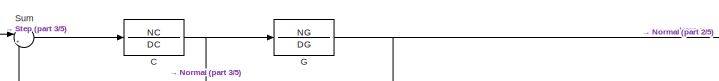
[diagram: root canvas - part 1/5, top center region]
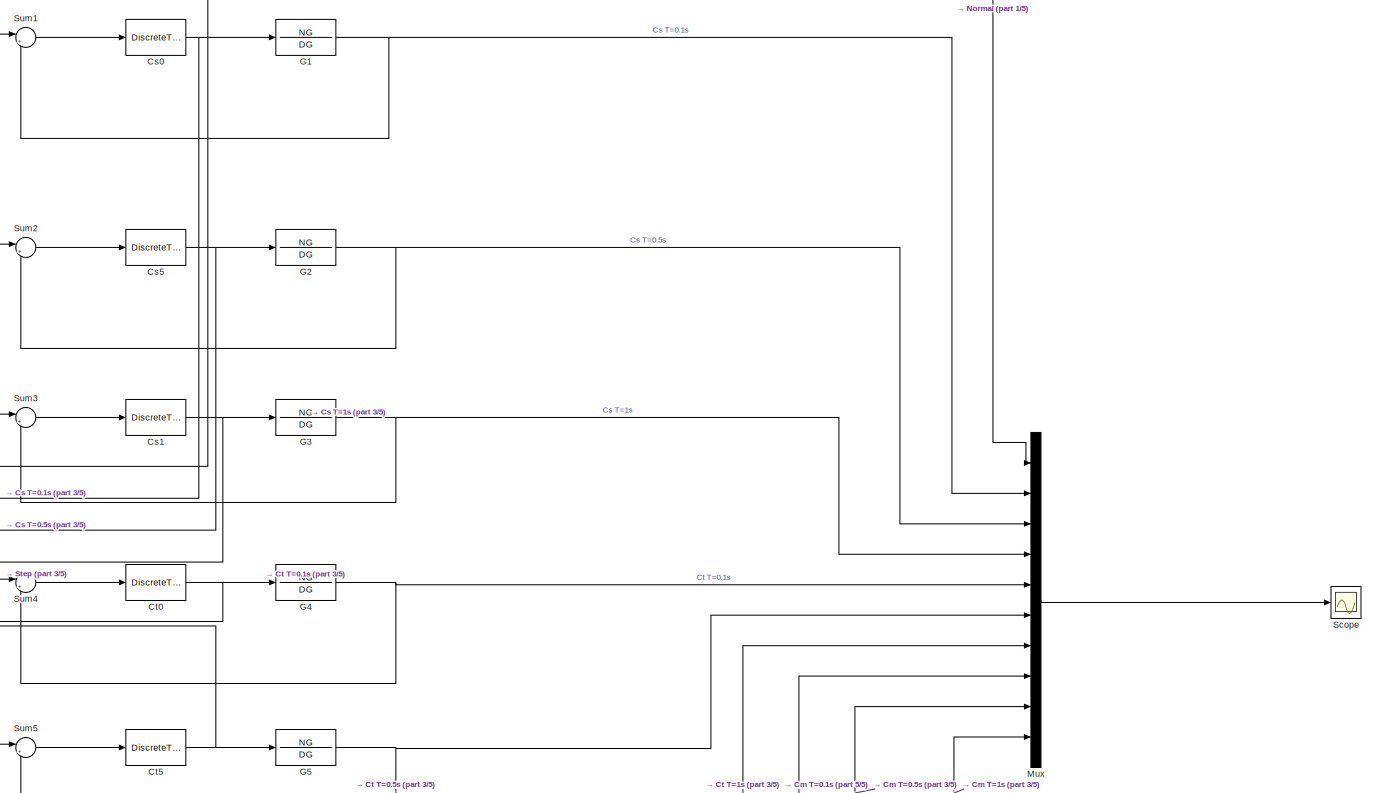
[diagram: root canvas - part 2/5, middle right region]
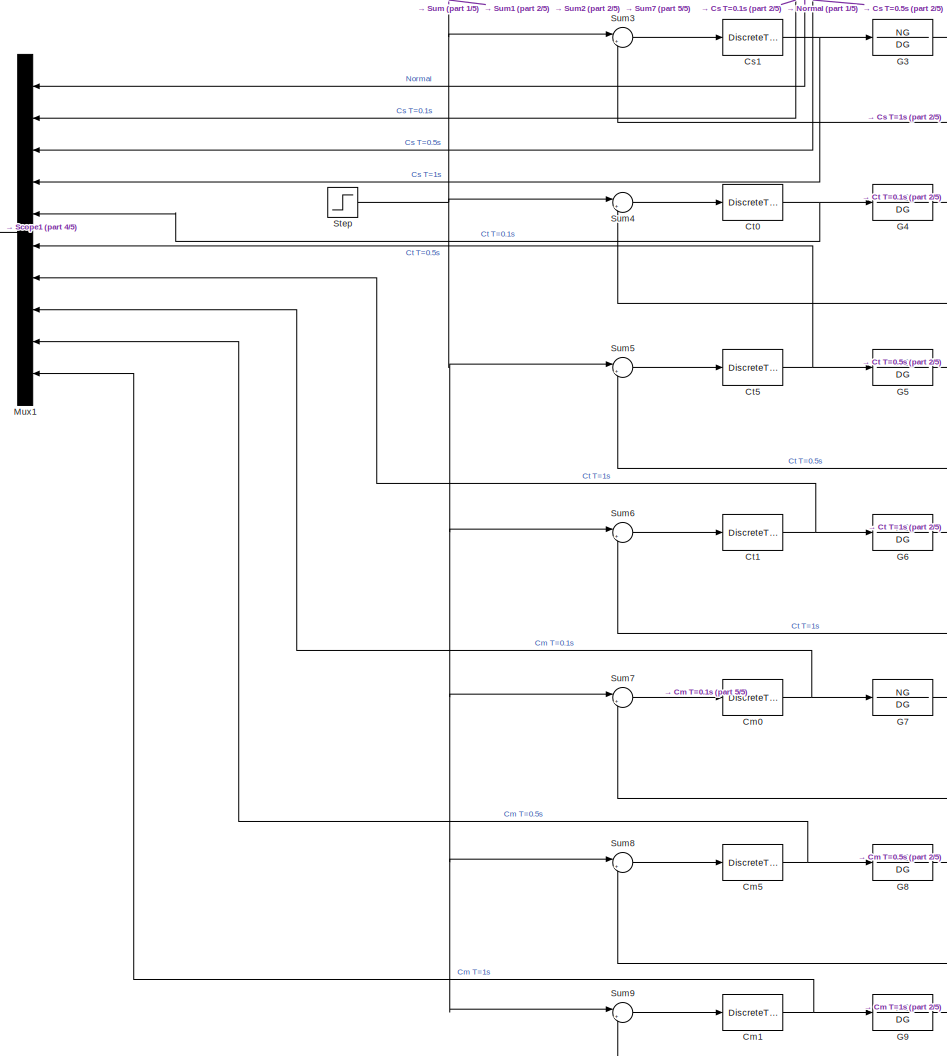
[diagram: root canvas - part 3/5, middle left region]
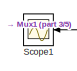
[diagram: root canvas - part 4/5, middle left region]
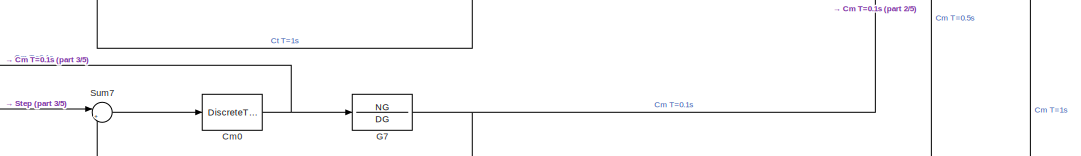
[diagram: root canvas - part 5/5, bottom center region]
MODEL slx_d710f744ee9e
KIND model
CONFIG AbsTol = auto
CONFIG EnableMultiTasking = off
CONFIG FixedStep = auto
CONFIG MaxStep = auto
CONFIG MinStep = auto
CONFIG RelTol = 1e-3
CONFIG SampleTimeConstraint = Unconstrained
CONFIG SolverName = VariableStepAuto
CONFIG StartTime = 0.0
CONFIG StopTime = 10.0
BLOCK [TransferFcn] C
  Denominator = DC
  Numerator = NC
BLOCK [DiscreteTransferFcn] Cm0
  Denominator = DCM0
  InputPortMap = u0
  Numerator = NCM0
  Ports = [1, 1]
  SampleTime = 0.1
BLOCK [DiscreteTransferFcn] Cm1
  Denominator = DCM1
  InputPortMap = u0
  Numerator = NCM1
  Ports = [1, 1]
  SampleTime = 1
BLOCK [DiscreteTransferFcn] Cm5
  Denominator = DCM5
  InputPortMap = u0
  Numerator = NCM5
  Ports = [1, 1]
  SampleTime = 0.5
BLOCK [DiscreteTransferFcn] Cs0
  Denominator = DCS0
  InputPortMap = u0
  Numerator = NCS0
  Ports = [1, 1]
  SampleTime = 0.1
BLOCK [DiscreteTransferFcn] Cs1
  Denominator = DCS1
  InputPortMap = u0
  Numerator = NCS1
  Ports = [1, 1]
  SampleTime = 1
BLOCK [DiscreteTransferFcn] Cs5
  Denominator = DCS5
  InputPortMap = u0
  Numerator = NCS5
  Ports = [1, 1]
  SampleTime = 0.5
BLOCK [DiscreteTransferFcn] Ct0
  Denominator = DCT0
  InputPortMap = u0
  Numerator = NCT0
  Ports = [1, 1]
  SampleTime = 0.1
BLOCK [DiscreteTransferFcn] Ct1
  Denominator = DCT1
  InputPortMap = u0
  Numerator = NCT1
  Ports = [1, 1]
  SampleTime = 1
BLOCK [DiscreteTransferFcn] Ct5
  Denominator = DCT5
  InputPortMap = u0
  Numerator = NCT5
  Ports = [1, 1]
  SampleTime = 0.5
BLOCK [TransferFcn] G
  Denominator = DG
  Numerator = NG
BLOCK [TransferFcn] G1
  Denominator = DG
  Numerator = NG
BLOCK [TransferFcn] G2
  Denominator = DG
  Numerator = NG
BLOCK [TransferFcn] G3
  Denominator = DG
  Numerator = NG
BLOCK [TransferFcn] G4
  Denominator = DG
  Numerator = NG
BLOCK [TransferFcn] G5
  Denominator = DG
  Numerator = NG
BLOCK [TransferFcn] G6
  Denominator = DG
  Numerator = NG
BLOCK [TransferFcn] G7
  Denominator = DG
  Numerator = NG
BLOCK [TransferFcn] G8
  Denominator = DG
  Numerator = NG
BLOCK [TransferFcn] G9
  Denominator = DG
  Numerator = NG
BLOCK [Mux] Mux
  DisplayOption = bar
  Inputs = 10
  Ports = [10, 1]
BLOCK [Mux] Mux1
  DisplayOption = bar
  Inputs = 10
  NameLocation = top
  Ports = [10, 1]
BLOCK [Scope] Scope
  Floating = off
  NumInputPorts = 1
  Ports = [1]
  ScopeSpecificationString = Simulink.scopes.TimeScopeBlockCfg('CurrentConfiguration', extmgr.ConfigurationSet(extmgr.Configuration('Core','General UI',true,'FigureColor',[0 0 0]),extmgr.Configuration('Core','Source UI',true),extmgr.Configuration('Sources','WiredSimulink',true),extmgr.Configuration('Visuals','Time Domain',true,'SerializedDisplays',{struct('MinYLimReal','-0.2063','MaxYLimReal','9.96988','YLabelReal','','MinYLi...<+2651ch>
BLOCK [Scope] Scope1
  Floating = off
  NameLocation = top
  NumInputPorts = 1
  Ports = [1]
  ScopeSpecificationString = Simulink.scopes.TimeScopeBlockCfg('CurrentConfiguration', extmgr.ConfigurationSet(extmgr.Configuration('Core','General UI',true,'FigureColor',[0 0 0]),extmgr.Configuration('Core','Source UI',true),extmgr.Configuration('Sources','WiredSimulink',true,'DataLoggingVariableName','ScopeData1'),extmgr.Configuration('Visuals','Time Domain',true,'SerializedDisplays',{struct('MinYLimReal','-0.13092','MaxYLi...<+2696ch>
BLOCK [Step] Step
  After = 10
  SampleTime = 0
  Time = 0
BLOCK [Sum] Sum
  Inputs = |+-
  Ports = [2, 1]
BLOCK [Sum] Sum1
  Inputs = |+-
  Ports = [2, 1]
BLOCK [Sum] Sum2
  Inputs = |+-
  Ports = [2, 1]
BLOCK [Sum] Sum3
  Inputs = |+-
  Ports = [2, 1]
BLOCK [Sum] Sum4
  Inputs = |+-
  Ports = [2, 1]
BLOCK [Sum] Sum5
  Inputs = |+-
  Ports = [2, 1]
BLOCK [Sum] Sum6
  Inputs = |+-
  Ports = [2, 1]
BLOCK [Sum] Sum7
  Inputs = |+-
  Ports = [2, 1]
BLOCK [Sum] Sum8
  Inputs = |+-
  Ports = [2, 1]
BLOCK [Sum] Sum9
  Inputs = |+-
  Ports = [2, 1]
NET C:1 -> G:1, Mux1:1
NET Cm0:1 -> G7:1, Mux1:8
NET Cm1:1 -> G9:1, Mux1:10
NET Cm5:1 -> G8:1, Mux1:9
NET Cs0:1 -> G1:1, Mux1:2
NET Cs1:1 -> G3:1, Mux1:4
NET Cs5:1 -> G2:1, Mux1:3
NET Ct0:1 -> G4:1, Mux1:5
NET Ct1:1 -> G6:1, Mux1:7
NET Ct5:1 -> G5:1, Mux1:6
NET G1:1 -> Mux:2, Sum1:2
NET G2:1 -> Mux:3, Sum2:2
NET G3:1 -> Mux:4, Sum3:2
NET G4:1 -> Mux:5, Sum4:2
NET G5:1 -> Mux:6, Sum5:2
NET G6:1 -> Mux:7, Sum6:2
NET G7:1 -> Mux:8, Sum7:2
NET G8:1 -> Mux:9, Sum8:2
NET G9:1 -> Mux:10, Sum9:2
NET G:1 -> Mux:1, Sum:2
LINE Mux1:1 -> Scope1:1
LINE Mux:1 -> Scope:1
NET Step:1 -> Sum1:1, Sum2:1, Sum3:1, Sum4:1, Sum5:1, Sum6:1, Sum7:1, Sum8:1, Sum9:1, Sum:1
LINE Sum1:1 -> Cs0:1
LINE Sum2:1 -> Cs5:1
LINE Sum3:1 -> Cs1:1
LINE Sum4:1 -> Ct0:1
LINE Sum5:1 -> Ct5:1
LINE Sum6:1 -> Ct1:1
LINE Sum7:1 -> Cm0:1
LINE Sum8:1 -> Cm5:1
LINE Sum9:1 -> Cm1:1
LINE Sum:1 -> C:1
note: NET lines group one-source signal fan-out (src -> all destinations, sorted); 1:1 wires keep LINE
